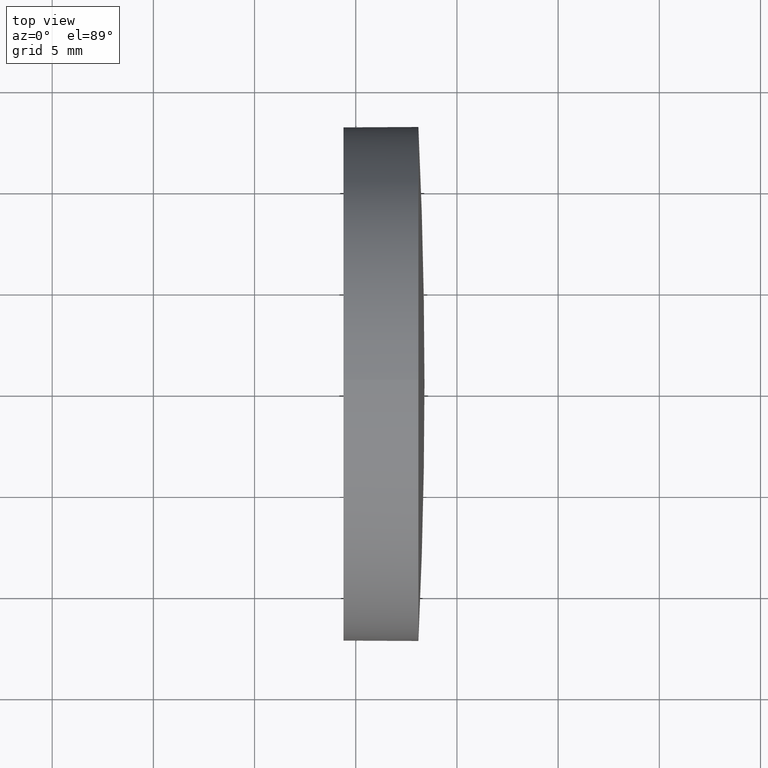
[diagram: clean part render]
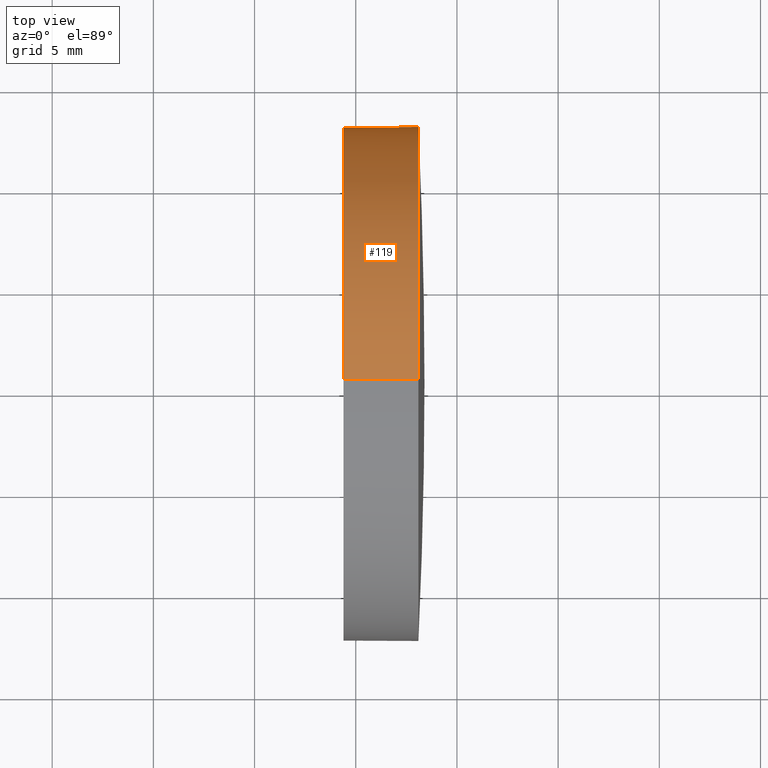
[diagram: same view with one face highlighted and labeled with its STEP entity id]
A machine part, top view. The second image highlights one B-rep face of the part: STEP entity #119.
In plain terms, the highlighted cylindrical surface (partial cylindrical patch) has radius 12.7 mm, axis along (-1, -0, -0).
Its self-contained STEP definition (entity closure, byte-faithful):
#2 = AXIS2_PLACEMENT_3D ( 'NONE', #133, #161, #108 ) ;
#3 = CARTESIAN_POINT ( 'NONE',  ( 548.0956546235013300, 475.3741786464798900, 12.70000000000004500 ) ) ;
#10 = CARTESIAN_POINT ( 'NONE',  ( 548.0956546235013300, 475.3741786464798900, 0.0000000000000000000 ) ) ;
#11 = ORIENTED_EDGE ( 'NONE', *, *, #180, .T. ) ;
#18 = VERTEX_POINT ( 'NONE', #49 ) ;
#23 = CYLINDRICAL_SURFACE ( 'NONE', #2, 12.70000000000004500 ) ;
#28 = EDGE_CURVE ( 'NONE', #45, #149, #103, .T. ) ;
#34 = VERTEX_POINT ( 'NONE', #3 ) ;
#37 = DIRECTION ( 'NONE',  ( 0.0000000000000000000, 0.0000000000000000000, 1.000000000000000000 ) ) ;
#40 = CARTESIAN_POINT ( 'NONE',  ( 538.7657585723441100, 475.3741786464798900, 12.70000000000004500 ) ) ;
#41 = DIRECTION ( 'NONE',  ( -1.000000000000000000, -0.0000000000000000000, -0.0000000000000000000 ) ) ;
#45 = VERTEX_POINT ( 'NONE', #76 ) ;
#49 = CARTESIAN_POINT ( 'NONE',  ( 544.3956546235012900, 475.3741786464798900, -12.70000000000004500 ) ) ;
#50 = EDGE_CURVE ( 'NONE', #34, #45, #172, .T. ) ;
#58 = AXIS2_PLACEMENT_3D ( 'NONE', #10, #41, #123 ) ;
#62 = FACE_OUTER_BOUND ( 'NONE', #131, .T. ) ;
#67 = CARTESIAN_POINT ( 'NONE',  ( 544.3956546235012900, 475.3741786464798900, 0.0000000000000000000 ) ) ;
#74 = CIRCLE ( 'NONE', #92, 12.70000000000004500 ) ;
#75 = DIRECTION ( 'NONE',  ( -1.000000000000000000, -0.0000000000000000000, -0.0000000000000000000 ) ) ;
#76 = CARTESIAN_POINT ( 'NONE',  ( 548.0956546235013300, 488.0741786464794800, 0.0000000000000000000 ) ) ;
#80 = ORIENTED_EDGE ( 'NONE', *, *, #28, .T. ) ;
#88 = VECTOR ( 'NONE', #136, 1000.000000000000000 ) ;
#92 = AXIS2_PLACEMENT_3D ( 'NONE', #67, #179, #37 ) ;
#94 = ORIENTED_EDGE ( 'NONE', *, *, #106, .F. ) ;
#102 = ORIENTED_EDGE ( 'NONE', *, *, #50, .T. ) ;
#103 = CIRCLE ( 'NONE', #144, 12.70000000000004500 ) ;
#106 = EDGE_CURVE ( 'NONE', #115, #18, #74, .T. ) ;
#108 = DIRECTION ( 'NONE',  ( 0.0000000000000000000, 0.0000000000000000000, 1.000000000000000000 ) ) ;
#111 = CARTESIAN_POINT ( 'NONE',  ( 538.7657585723441100, 475.3741786464798900, -12.70000000000004500 ) ) ;
#115 = VERTEX_POINT ( 'NONE', #138 ) ;
#116 = CARTESIAN_POINT ( 'NONE',  ( 548.0956546235013300, 475.3741786464798900, 0.0000000000000000000 ) ) ;
#119 = ADVANCED_FACE ( 'NONE', ( #62 ), #23, .T. ) ;
#123 = DIRECTION ( 'NONE',  ( 0.0000000000000000000, 0.0000000000000000000, 1.000000000000000000 ) ) ;
#125 = CARTESIAN_POINT ( 'NONE',  ( 548.0956546235013300, 475.3741786464798900, -12.70000000000004500 ) ) ;
#131 = EDGE_LOOP ( 'NONE', ( #80, #11, #94, #186, #102 ) ) ;
#133 = CARTESIAN_POINT ( 'NONE',  ( 538.7657585723441100, 475.3741786464798900, 0.0000000000000000000 ) ) ;
#136 = DIRECTION ( 'NONE',  ( -1.000000000000000000, -0.0000000000000000000, -0.0000000000000000000 ) ) ;
#138 = CARTESIAN_POINT ( 'NONE',  ( 544.3956546235012900, 475.3741786464798900, 12.70000000000004500 ) ) ;
#140 = VECTOR ( 'NONE', #184, 1000.000000000000000 ) ;
#144 = AXIS2_PLACEMENT_3D ( 'NONE', #116, #75, #168 ) ;
#149 = VERTEX_POINT ( 'NONE', #125 ) ;
#151 = LINE ( 'NONE', #111, #140 ) ;
#161 = DIRECTION ( 'NONE',  ( -1.000000000000000000, -0.0000000000000000000, -0.0000000000000000000 ) ) ;
#168 = DIRECTION ( 'NONE',  ( 0.0000000000000000000, 0.0000000000000000000, 1.000000000000000000 ) ) ;
#171 = EDGE_CURVE ( 'NONE', #34, #115, #175, .T. ) ;
#172 = CIRCLE ( 'NONE', #58, 12.70000000000004500 ) ;
#175 = LINE ( 'NONE', #40, #88 ) ;
#179 = DIRECTION ( 'NONE',  ( -1.000000000000000000, -0.0000000000000000000, -0.0000000000000000000 ) ) ;
#180 = EDGE_CURVE ( 'NONE', #149, #18, #151, .T. ) ;
#184 = DIRECTION ( 'NONE',  ( -1.000000000000000000, -0.0000000000000000000, -0.0000000000000000000 ) ) ;
#186 = ORIENTED_EDGE ( 'NONE', *, *, #171, .F. ) ;